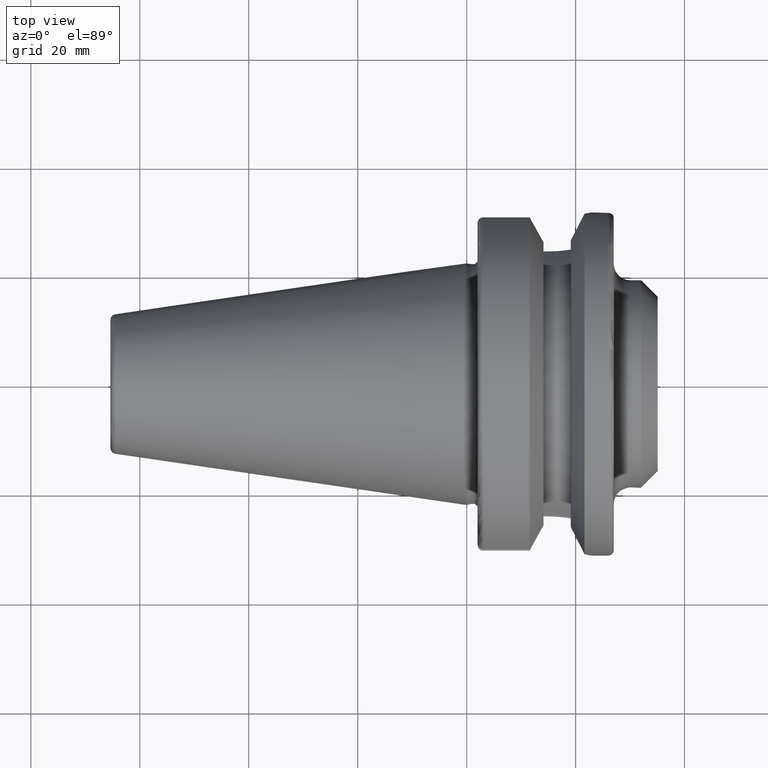
[diagram: clean part render]
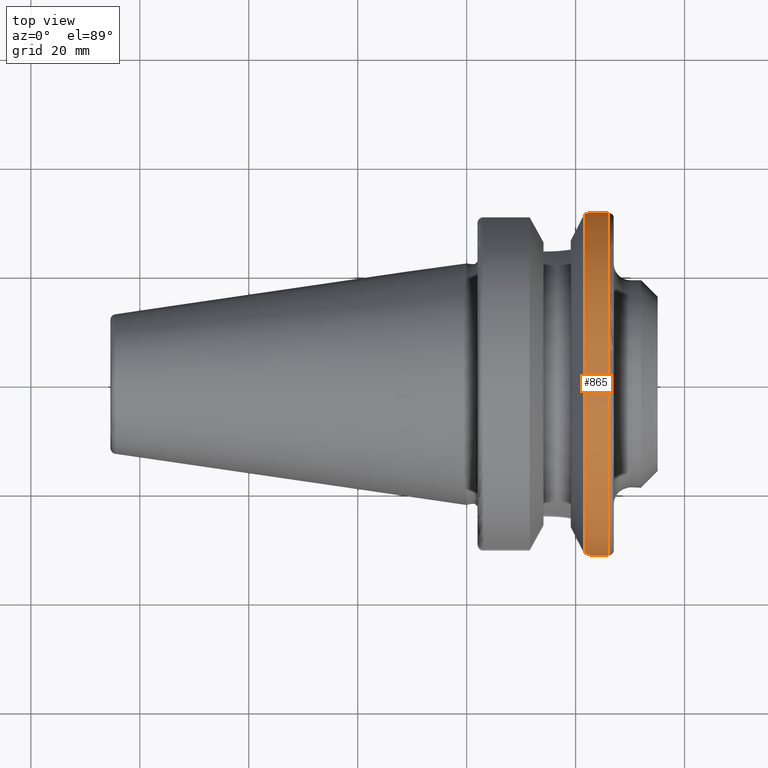
[diagram: same view with one face highlighted and labeled with its STEP entity id]
A machine part, top view. The second image highlights one B-rep face of the part: STEP entity #865.
In plain terms, the highlighted cylindrical surface (bore or boss wall) has radius 31.5 mm, axis along (1, 0, 0).
Its self-contained STEP definition (entity closure, byte-faithful):
#42=B_SPLINE_CURVE_WITH_KNOTS('',3,(#1480,#1481,#1482,#1483,#1484,#1485),
 .UNSPECIFIED.,.F.,.F.,(4,2,4),(1.21877751840372,1.52344857393281,1.67526011710938),
 .UNSPECIFIED.);
#43=B_SPLINE_CURVE_WITH_KNOTS('',3,(#1487,#1488,#1489,#1490,#1491,#1492),
 .UNSPECIFIED.,.F.,.F.,(4,2,4),(0.762294919698051,0.914106462874623,1.21877751840372),
 .UNSPECIFIED.);
#46=B_SPLINE_CURVE_WITH_KNOTS('',3,(#1536,#1537,#1538,#1539,#1540,#1541,
#1542,#1543,#1544,#1545),.UNSPECIFIED.,.F.,.F.,(4,2,2,2,4),(3.19984995650548,
3.35166149968206,3.65633255521115,3.96100361074024,4.11281515391681),
 .UNSPECIFIED.);
#107=FACE_OUTER_BOUND('',#169,.T.);
#169=EDGE_LOOP('',(#666,#667,#668,#669,#670,#671,#672,#673,#674));
#229=LINE('',#1532,#275);
#275=VECTOR('',#1157,31.5);
#321=CIRCLE('',#967,31.5);
#322=CIRCLE('',#968,31.5);
#323=CIRCLE('',#969,31.5);
#324=CIRCLE('',#970,31.5);
#394=VERTEX_POINT('',#1472);
#395=VERTEX_POINT('',#1479);
#396=VERTEX_POINT('',#1486);
#404=VERTEX_POINT('',#1529);
#405=VERTEX_POINT('',#1530);
#406=VERTEX_POINT('',#1533);
#407=VERTEX_POINT('',#1535);
#490=EDGE_CURVE('',#395,#394,#42,.T.);
#491=EDGE_CURVE('',#396,#395,#43,.T.);
#502=EDGE_CURVE('',#404,#405,#321,.T.);
#503=EDGE_CURVE('',#404,#395,#229,.T.);
#504=EDGE_CURVE('',#394,#406,#322,.T.);
#505=EDGE_CURVE('',#406,#407,#46,.T.);
#506=EDGE_CURVE('',#407,#396,#323,.T.);
#507=EDGE_CURVE('',#405,#404,#324,.T.);
#666=ORIENTED_EDGE('',*,*,#502,.F.);
#667=ORIENTED_EDGE('',*,*,#503,.T.);
#668=ORIENTED_EDGE('',*,*,#490,.T.);
#669=ORIENTED_EDGE('',*,*,#504,.T.);
#670=ORIENTED_EDGE('',*,*,#505,.T.);
#671=ORIENTED_EDGE('',*,*,#506,.T.);
#672=ORIENTED_EDGE('',*,*,#491,.T.);
#673=ORIENTED_EDGE('',*,*,#503,.F.);
#674=ORIENTED_EDGE('',*,*,#507,.F.);
#834=CYLINDRICAL_SURFACE('',#966,31.5);
#865=ADVANCED_FACE('',(#107),#834,.T.);
#966=AXIS2_PLACEMENT_3D('',#1528,#1153,#1154);
#967=AXIS2_PLACEMENT_3D('',#1531,#1155,#1156);
#968=AXIS2_PLACEMENT_3D('',#1534,#1158,#1159);
#969=AXIS2_PLACEMENT_3D('',#1546,#1160,#1161);
#970=AXIS2_PLACEMENT_3D('',#1547,#1162,#1163);
#1153=DIRECTION('center_axis',(1.,0.,0.));
#1154=DIRECTION('ref_axis',(0.,1.,0.));
#1155=DIRECTION('center_axis',(1.,0.,0.));
#1156=DIRECTION('ref_axis',(0.,0.,-1.));
#1157=DIRECTION('',(-1.,0.,0.));
#1158=DIRECTION('center_axis',(1.,0.,0.));
#1159=DIRECTION('ref_axis',(0.,0.,-1.));
#1160=DIRECTION('center_axis',(1.,0.,0.));
#1161=DIRECTION('ref_axis',(0.,0.,-1.));
#1162=DIRECTION('center_axis',(1.,0.,0.));
#1163=DIRECTION('ref_axis',(0.,0.,-1.));
#1472=CARTESIAN_POINT('',(21.6309636926618,-31.1782420264945,-4.4907932637046));
#1479=CARTESIAN_POINT('',(23.,-31.5,-1.51248507442265E-15));
#1480=CARTESIAN_POINT('Ctrl Pts',(23.,-31.5,8.32667268468867E-16));
#1481=CARTESIAN_POINT('Ctrl Pts',(23.,-31.5,-1.01557018509698));
#1482=CARTESIAN_POINT('Ctrl Pts',(22.7961189876535,-31.445974204441,-2.09580170425552));
#1483=CARTESIAN_POINT('Ctrl Pts',(22.1796133812044,-31.2997625705024,-3.58065358198869));
#1484=CARTESIAN_POINT('Ctrl Pts',(21.92482980253,-31.2412125047166,-4.05360796141051));
#1485=CARTESIAN_POINT('Ctrl Pts',(21.6309636926618,-31.1782420264945,-4.4907932637046));
#1486=CARTESIAN_POINT('',(21.6309636926618,-31.1782420264945,4.4907932637046));
#1487=CARTESIAN_POINT('Ctrl Pts',(21.6309636926618,-31.1782420264945,4.4907932637046));
#1488=CARTESIAN_POINT('Ctrl Pts',(21.92482980253,-31.2412125047166,4.05360796141051));
#1489=CARTESIAN_POINT('Ctrl Pts',(22.1796133812044,-31.2997625705024,3.58065358198869));
#1490=CARTESIAN_POINT('Ctrl Pts',(22.7961189876535,-31.445974204441,2.09580170425552));
#1491=CARTESIAN_POINT('Ctrl Pts',(23.,-31.5,1.01557018509698));
#1492=CARTESIAN_POINT('Ctrl Pts',(23.,-31.5,-2.77555756156289E-16));
#1528=CARTESIAN_POINT('Origin',(23.8154818463309,0.,0.));
#1529=CARTESIAN_POINT('',(26.,-31.5,-3.85763741731416E-15));
#1530=CARTESIAN_POINT('',(26.,-3.85763741731416E-15,31.5));
#1531=CARTESIAN_POINT('Origin',(26.,0.,0.));
#1532=CARTESIAN_POINT('',(23.8154818463309,-31.5,-3.85763741731416E-15));
#1533=CARTESIAN_POINT('',(21.6309636926618,31.1782420264945,-4.4907932637046));
#1534=CARTESIAN_POINT('Origin',(21.6309636926618,0.,0.));
#1535=CARTESIAN_POINT('',(21.6309636926618,31.1782420264945,4.4907932637046));
#1536=CARTESIAN_POINT('Ctrl Pts',(21.6309636926618,31.1782420264945,-4.4907932637046));
#1537=CARTESIAN_POINT('Ctrl Pts',(21.92482980253,31.2412125047166,-4.05360796141051));
#1538=CARTESIAN_POINT('Ctrl Pts',(22.1796133812044,31.2997625705024,-3.58065358198869));
#1539=CARTESIAN_POINT('Ctrl Pts',(22.7961189876535,31.445974204441,-2.09580170425552));
#1540=CARTESIAN_POINT('Ctrl Pts',(23.,31.5,-1.01557018509698));
#1541=CARTESIAN_POINT('Ctrl Pts',(23.,31.5,1.01557018509698));
#1542=CARTESIAN_POINT('Ctrl Pts',(22.7961189876535,31.445974204441,2.09580170425552));
#1543=CARTESIAN_POINT('Ctrl Pts',(22.1796133812044,31.2997625705024,3.58065358198869));
#1544=CARTESIAN_POINT('Ctrl Pts',(21.92482980253,31.2412125047166,4.05360796141051));
#1545=CARTESIAN_POINT('Ctrl Pts',(21.6309636926618,31.1782420264945,4.4907932637046));
#1546=CARTESIAN_POINT('Origin',(21.6309636926618,0.,0.));
#1547=CARTESIAN_POINT('Origin',(26.,0.,0.));